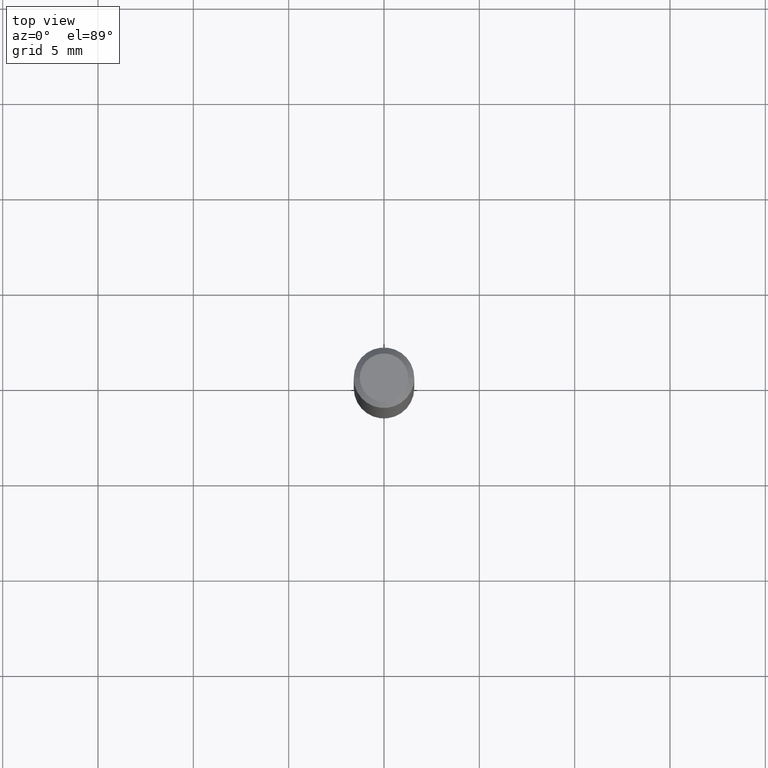
[diagram: clean part render]
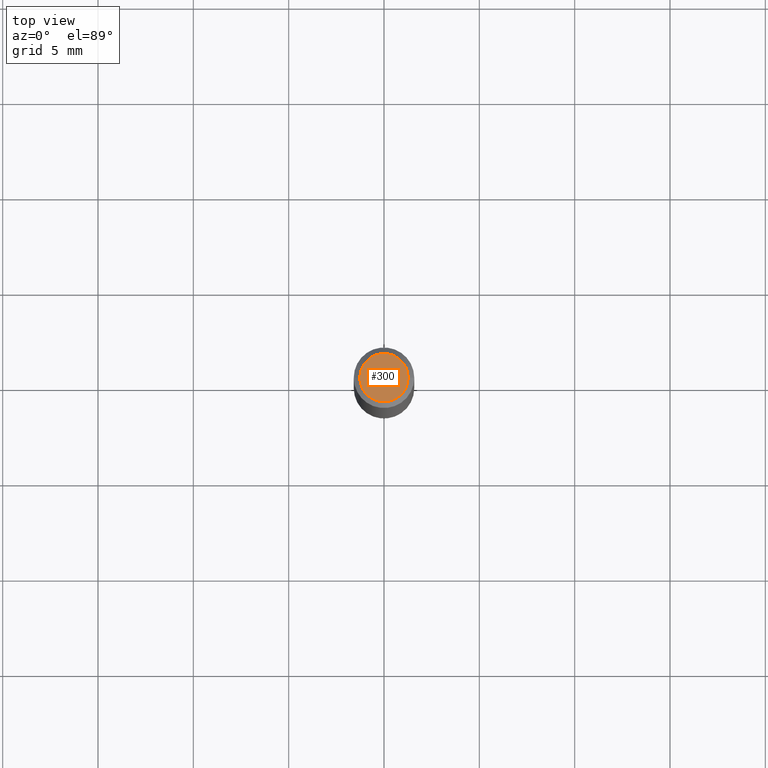
[diagram: same view with one face highlighted and labeled with its STEP entity id]
A machine part, top view. The second image highlights one B-rep face of the part: STEP entity #300.
In plain terms, the highlighted planar face has unit normal (0, -0, -1).
Its self-contained STEP definition (entity closure, byte-faithful):
#25 = CARTESIAN_POINT ( 'NONE',  ( 3.893286209682126177E-47, -5.558580879666067980E-33, -1.592040838891559689E-18 ) ) ;
#54 = FACE_OUTER_BOUND ( 'NONE', #459, .T. ) ;
#64 = ORIENTED_EDGE ( 'NONE', *, *, #343, .T. ) ;
#101 = DIRECTION ( 'NONE',  ( -2.445468806185136597E-29, 3.491481338843145583E-15, 1.000000000000000000 ) ) ;
#107 = ORIENTED_EDGE ( 'NONE', *, *, #243, .T. ) ;
#111 = CARTESIAN_POINT ( 'NONE',  ( 0.04999999999999999584, -4.077247707424184705E-16, -1.592040838888913461E-18 ) ) ;
#116 = AXIS2_PLACEMENT_3D ( 'NONE', #25, #408, #216 ) ;
#136 = CARTESIAN_POINT ( 'NONE',  ( 3.893286209682126177E-47, -5.558580879666067980E-33, -1.592040838891559689E-18 ) ) ;
#140 = DIRECTION ( 'NONE',  ( -1.000000000000000000, 6.982962677686265922E-15, -4.876176775795935793E-29 ) ) ;
#146 = AXIS2_PLACEMENT_3D ( 'NONE', #282, #375, #140 ) ;
#189 = AXIS2_PLACEMENT_3D ( 'NONE', #136, #101, #248 ) ;
#216 = DIRECTION ( 'NONE',  ( 1.000000000000000000, -6.982962677686265922E-15, 4.875957971899673662E-29 ) ) ;
#243 = EDGE_CURVE ( 'NONE', #329, #331, #456, .T. ) ;
#248 = DIRECTION ( 'NONE',  ( 1.000000000000000000, -6.982962677686265922E-15, 4.875957971899673662E-29 ) ) ;
#282 = CARTESIAN_POINT ( 'NONE',  ( 1.946643104841063088E-47, -2.779290439833033990E-33, -7.960204194457798443E-19 ) ) ;
#300 = ADVANCED_FACE ( 'NONE', ( #54 ), #316, .F. ) ;
#316 = PLANE ( 'NONE',  #146 ) ;
#329 = VERTEX_POINT ( 'NONE', #111 ) ;
#331 = VERTEX_POINT ( 'NONE', #364 ) ;
#343 = EDGE_CURVE ( 'NONE', #331, #329, #369, .T. ) ;
#364 = CARTESIAN_POINT ( 'NONE',  ( -0.04999999999999999584, 3.709698922520826725E-16, -1.592040838894077649E-18 ) ) ;
#369 = CIRCLE ( 'NONE', #116, 0.04999999999999999584 ) ;
#375 = DIRECTION ( 'NONE',  ( 2.438088387897960049E-29, -3.491481338843145188E-15, -1.000000000000000000 ) ) ;
#408 = DIRECTION ( 'NONE',  ( -2.445468806185136597E-29, 3.491481338843145583E-15, 1.000000000000000000 ) ) ;
#456 = CIRCLE ( 'NONE', #189, 0.04999999999999999584 ) ;
#459 = EDGE_LOOP ( 'NONE', ( #64, #107 ) ) ;